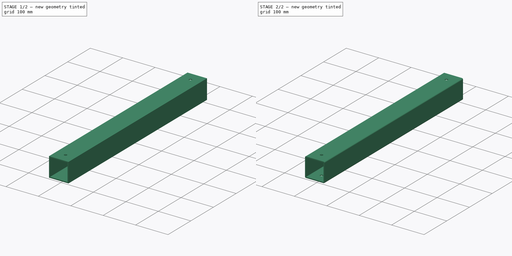
[diagram: build sequence overview — one tinted view per stage of 2, left to right]
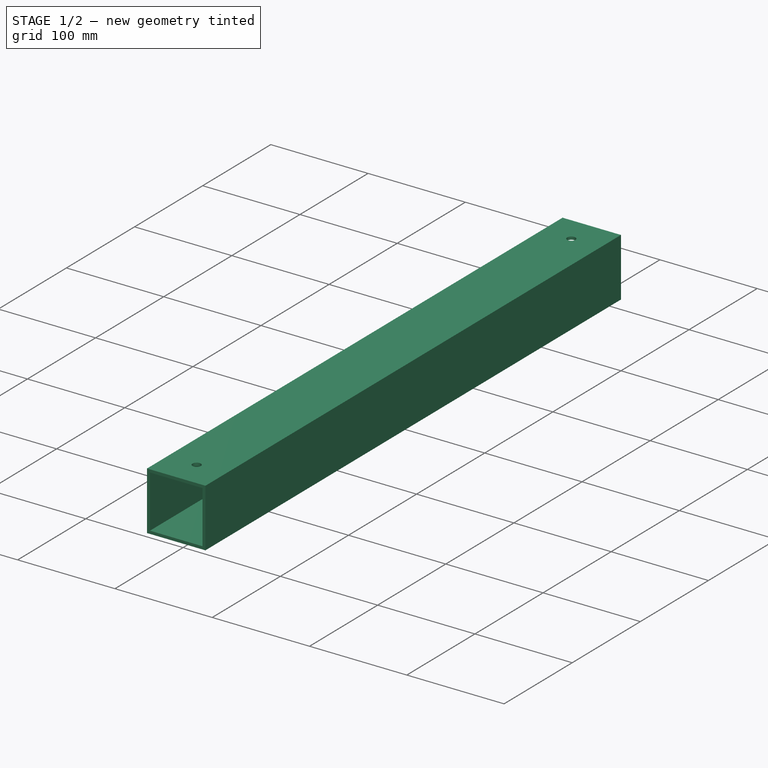
[diagram: stage 1 of 2 — iso view after this stage's code; geometry added in this stage tinted green]
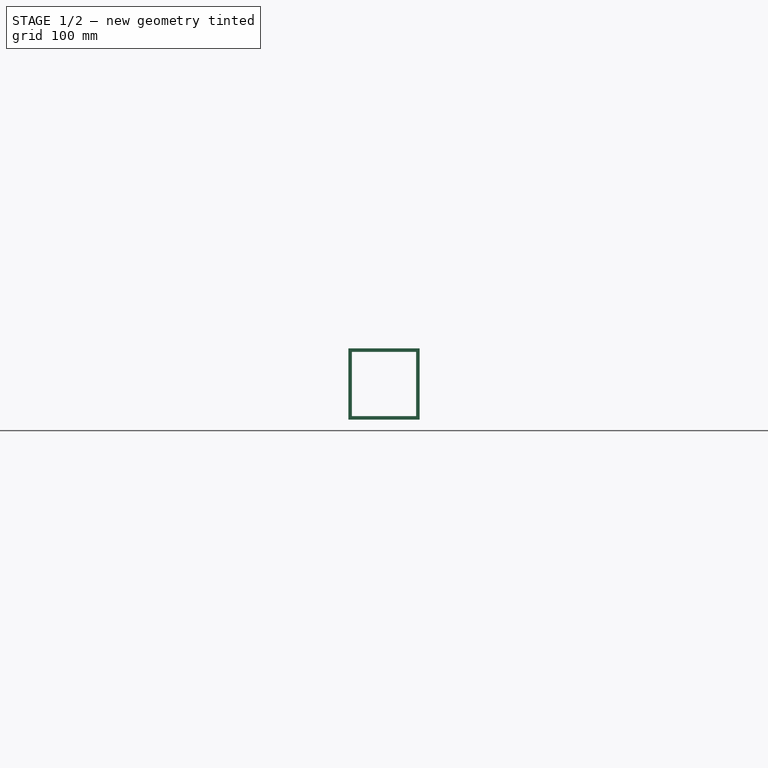
[diagram: stage 1 of 2 — front view after this stage's code; geometry added in this stage tinted green]
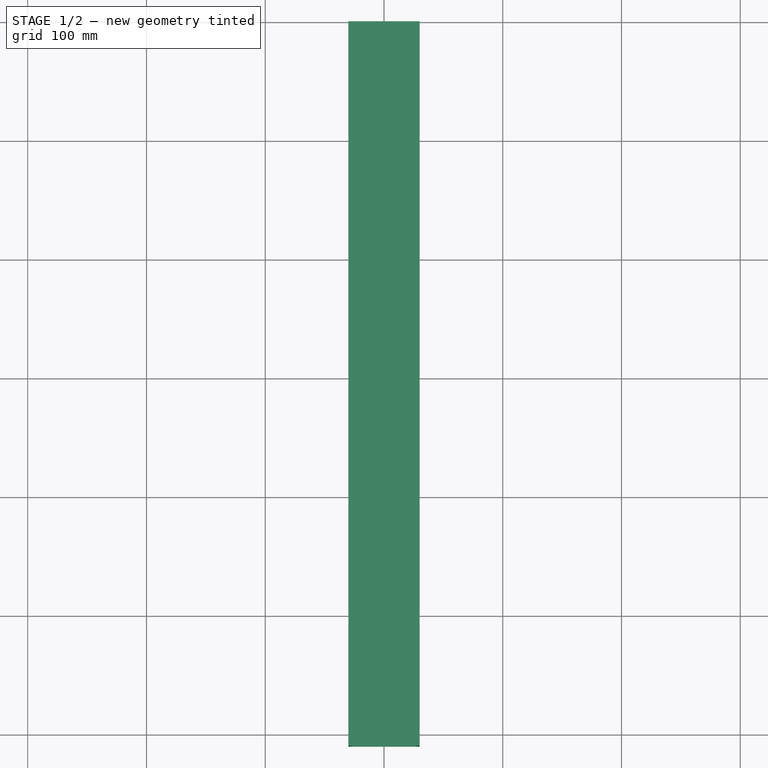
[diagram: stage 1 of 2 — top view after this stage's code; geometry added in this stage tinted green]
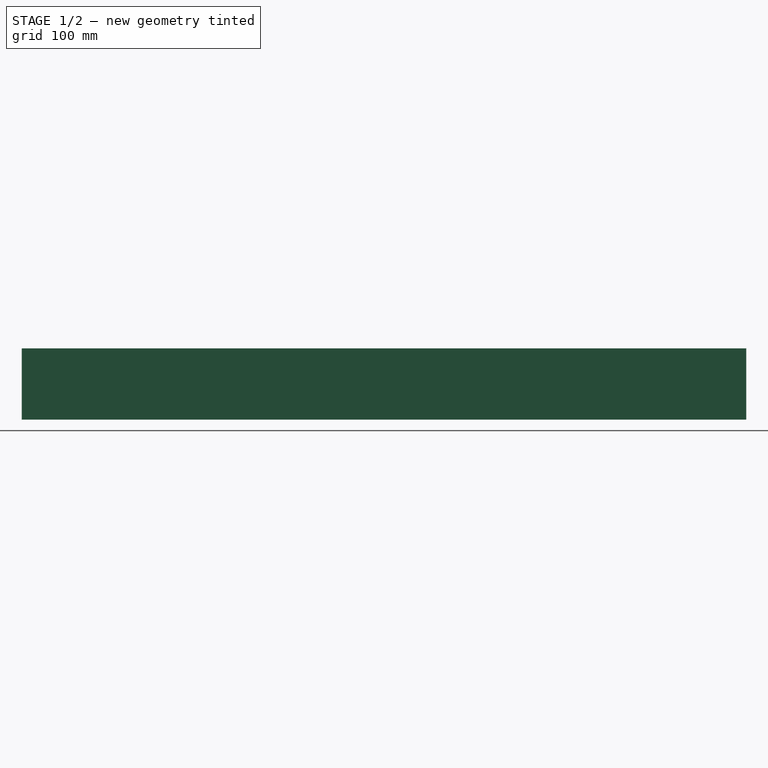
[diagram: stage 1 of 2 — right view after this stage's code; geometry added in this stage tinted green]
FCSTD DOCUMENT  (FreeCAD 0.19R)
Label: x_low_tube
License: All rights reserved
LicenseURL: http://en.wikipedia.org/wiki/All_rights_reserved
objects: PartDesign::CoordinateSystem×4, Sketcher::SketchObject×3, PartDesign::Pocket×2, PartDesign::Pad×1, PartDesign::Fillet×1, PartDesign::Body×1
note: 16 computed .brp shape members not serialized (recipe doc carries the construction recipe); baked Part::Feature solids carry a one-line shape summary decoded from their .brp

FEATURE [Sketcher::SketchObject] Sketch
  FullyConstrained = true
  MapMode = 5
  Placement = pos=(0,0,0) rot=(1,0,0;1.5708rad)
  Support = -> [XZ_Plane]
  sketch-geometry (8):
    g0: LineSegment StartX=-27 StartY=27 StartZ=0 EndX=27 EndY=27 EndZ=0
    g1: LineSegment StartX=27 StartY=27 StartZ=0 EndX=27 EndY=-27 EndZ=0
    g2: LineSegment StartX=27 StartY=-27 StartZ=0 EndX=-27 EndY=-27 EndZ=0
    g3: LineSegment StartX=-27 StartY=-27 StartZ=0 EndX=-27 EndY=27 EndZ=0
    g4: LineSegment StartX=-30 StartY=30 StartZ=0 EndX=30 EndY=30 EndZ=0
    g5: LineSegment StartX=30 StartY=30 StartZ=0 EndX=30 EndY=-30 EndZ=0
    g6: LineSegment StartX=30 StartY=-30 StartZ=0 EndX=-30 EndY=-30 EndZ=0
    g7: LineSegment StartX=-30 StartY=-30 StartZ=0 EndX=-30 EndY=30 EndZ=0
  constraints (22):
    c: Coincident(g0,g1)
    c: Coincident(g1,g2)
    c: Coincident(g2,g3)
    c: Coincident(g3,g0)
    c: Horizontal(g0)
    c: Horizontal(g2)
    c: Vertical(g1)
    c: Vertical(g3)
    c: Coincident(g4,g5)
    c: Coincident(g5,g6)
    c: Coincident(g6,g7)
    c: Coincident(g7,g4)
    c: Horizontal(g6)
    c: Vertical(g5)
    c: DistanceY(g7,g7) = 60
    c: DistanceX(g4,g4) = 60
    c: Symmetric(g4,g4,g-2)
    c: Symmetric(g6,g4,g-1)
    c: DistanceX(g0,g4) = 3
    c: DistanceY(g0,g4) = 3
    c: DistanceX(g6,g2) = 3
    c: DistanceY(g6,g2) = 3
FEATURE [PartDesign::Pad] Pad
  Direction = (1,1,1)
  Length = 610
  Length2 = 100
  Placement = pos=(0,0,0) rot=(1,0,0;1.5708rad)
  Profile = -> Sketch
  Type = 0
FEATURE [Sketcher::SketchObject] Sketch001
  ExternalGeometry = -> [Pad]
  FullyConstrained = true
  MapMode = 5
  Placement = pos=(0,0,30) rot=(0,0,1;3.14159rad)
  Support = -> [Pad]
  sketch-geometry (2):
    g0: Circle CenterX=0 CenterY=30 CenterZ=0 NormalX=0 NormalY=0 NormalZ=1 AngleXU=0 Radius=4.25
    g1: Circle CenterX=0 CenterY=580 CenterZ=0 NormalX=0 NormalY=0 NormalZ=1 AngleXU=0 Radius=4.25
  constraints (6):
    c: PointOnObject(g0,g-2)
    c: DistanceY(g-3,g0) = 30
    c: PointOnObject(g1,g-2)
    c: DistanceY(g1,g-4) = 30
    c: Equal(g1,g0)
    c: Diameter(g0) = 8.5
FEATURE [PartDesign::Pocket] Pocket
  BaseFeature = -> Pad
  Length = 3
  Length2 = 100
  Placement = pos=(0,0,0) rot=(1,0,0;1.5708rad)
  Profile = -> Sketch001
  Type = 0
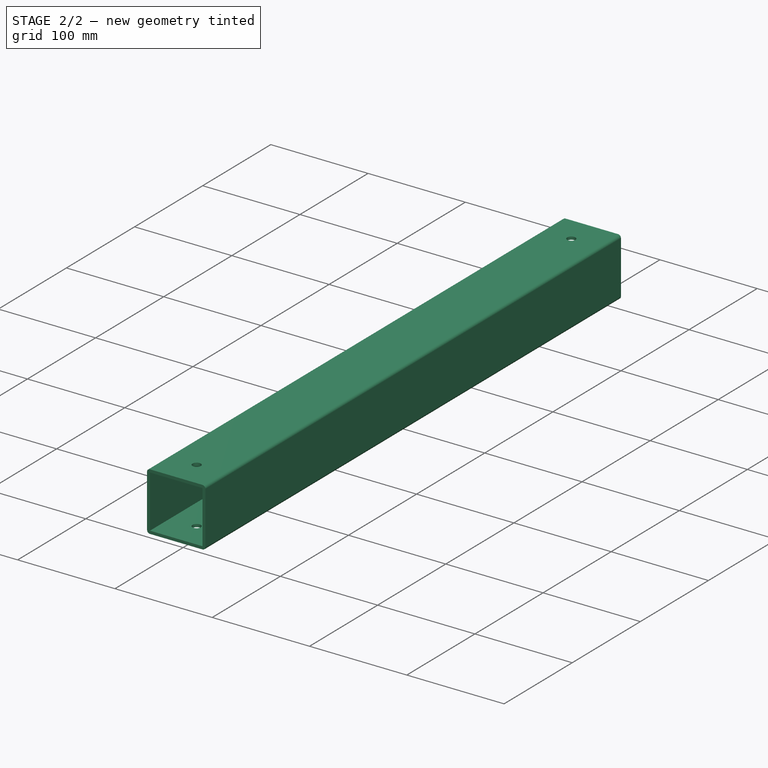
[diagram: stage 2 of 2 — iso view after this stage's code; geometry added in this stage tinted green]
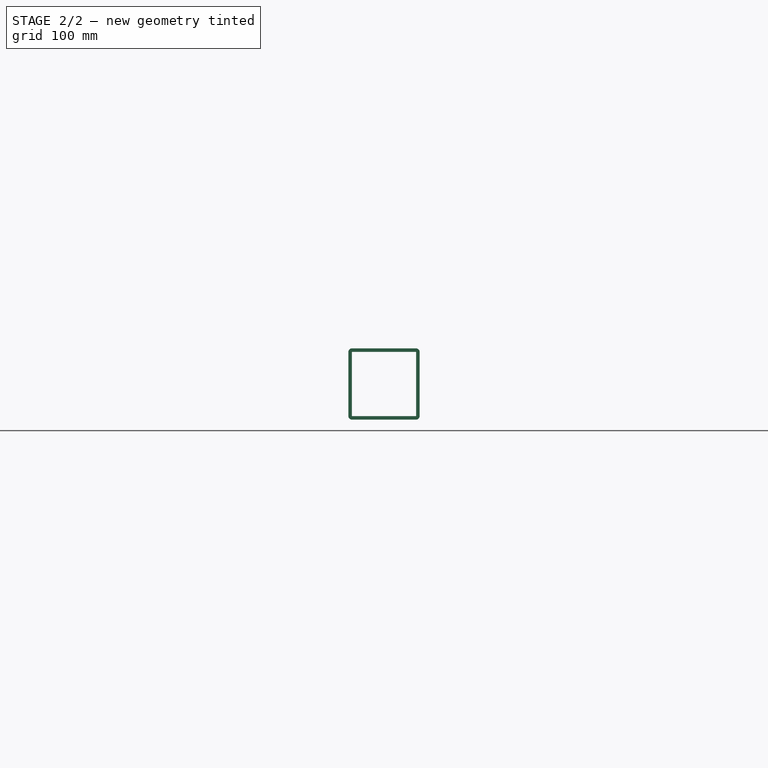
[diagram: stage 2 of 2 — front view after this stage's code; geometry added in this stage tinted green]
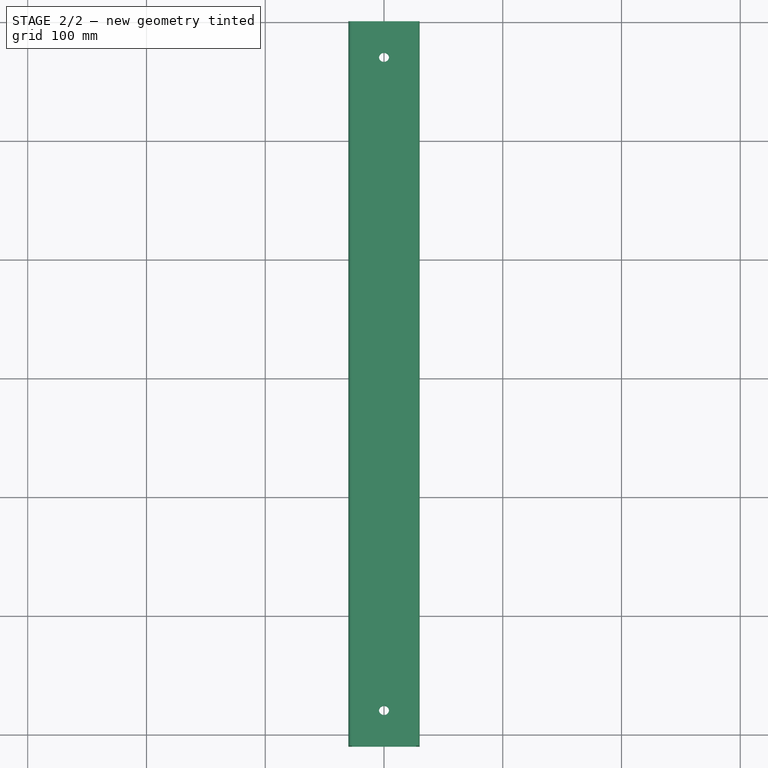
[diagram: stage 2 of 2 — top view after this stage's code; geometry added in this stage tinted green]
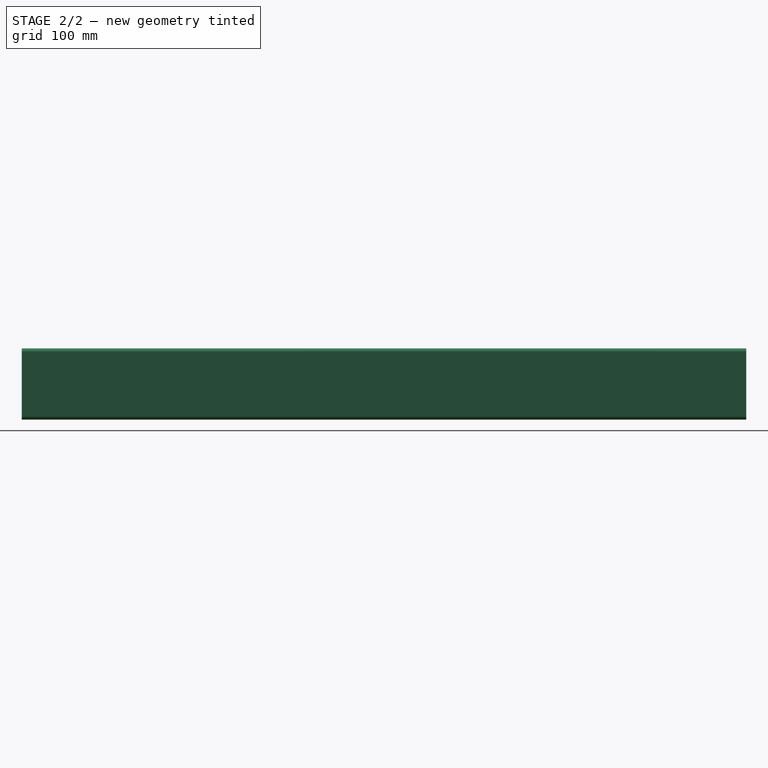
[diagram: stage 2 of 2 — right view after this stage's code; geometry added in this stage tinted green]
FEATURE [PartDesign::CoordinateSystem] LCS_hole1
  AttacherType = Attacher::AttachEngine3D
  MapMode = 11
  Placement = pos=(0,-580,30) rot=(0,0,-1;1.5708rad)
  Support = -> [Pocket]
FEATURE [PartDesign::CoordinateSystem] LCS_hole2
  AttacherType = Attacher::AttachEngine3D
  MapMode = 11
  Placement = pos=(0,-30,30) rot=(0,0,-1;1.5708rad)
  Support = -> [Pocket]
FEATURE [Sketcher::SketchObject] Sketch002
  ExternalGeometry = -> [Pocket]
  FullyConstrained = true
  MapMode = 5
  Placement = pos=(0,0,-30) rot=(1,0,0;3.14159rad)
  Support = -> [Pocket]
  sketch-geometry (2):
    g0: Circle CenterX=0 CenterY=30 CenterZ=0 NormalX=0 NormalY=0 NormalZ=1 AngleXU=0 Radius=4.25
    g1: Circle CenterX=0 CenterY=580 CenterZ=0 NormalX=0 NormalY=0 NormalZ=1 AngleXU=0 Radius=4.25
  constraints (6):
    c: PointOnObject(g0,g-2)
    c: PointOnObject(g1,g-2)
    c: Equal(g0,g1)
    c: Diameter(g1) = 8.5
    c: DistanceY(g-1,g0) = 30
    c: DistanceY(g1,g-3) = 30
FEATURE [PartDesign::Pocket] Pocket001
  BaseFeature = -> Pocket
  Length = 3
  Length2 = 100
  Placement = pos=(0,0,0) rot=(1,0,0;1.5708rad)
  Profile = -> Sketch002
  Type = 0
FEATURE [PartDesign::CoordinateSystem] LCS_hole3
  AttacherType = Attacher::AttachEngine3D
  MapMode = 11
  Placement = pos=(0,-30,-30) rot=(0.707107,-0.707107,0;3.14159rad)
  Support = -> [Pocket001]
FEATURE [PartDesign::CoordinateSystem] LCS_hole4
  AttacherType = Attacher::AttachEngine3D
  MapMode = 11
  Placement = pos=(0,-580,-30) rot=(0.707107,-0.707107,0;3.14159rad)
  Support = -> [Pocket001]
FEATURE [PartDesign::Fillet] Fillet
  Base = -> Pocket001 [Edge4,Edge22,Edge7,Edge1]
  BaseFeature = -> Pocket001
  Placement = pos=(0,0,0) rot=(1,0,0;1.5708rad)
  Radius = 3
  SupportTransform = false
FEATURE [PartDesign::Body] Body
  Group = -> [Sketch,Pad,Sketch001,Pocket,LCS_hole1,LCS_hole2,Sketch002,Pocket001,LCS_hole3,LCS_hole4,Fillet]
  Origin = -> Origin
  Tip = -> Fillet
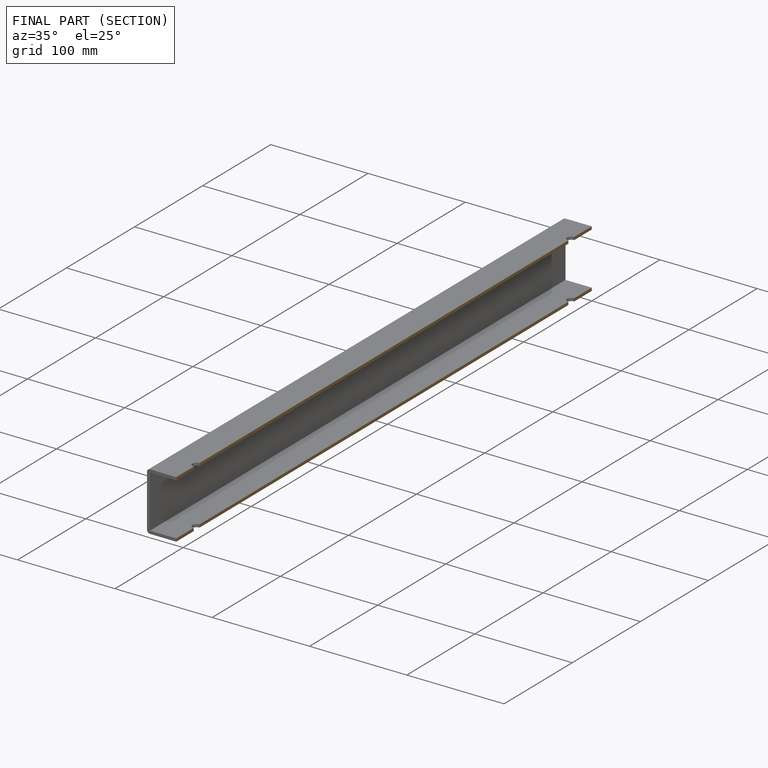
[diagram: finished part — half-section view (interior)]
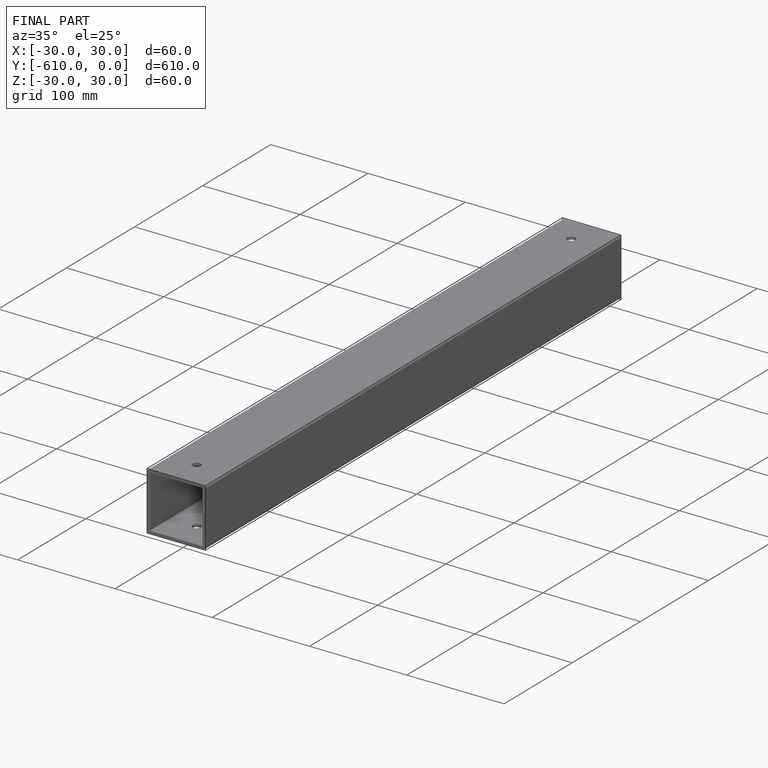
[diagram: finished part — iso view with bounding-box wireframe]
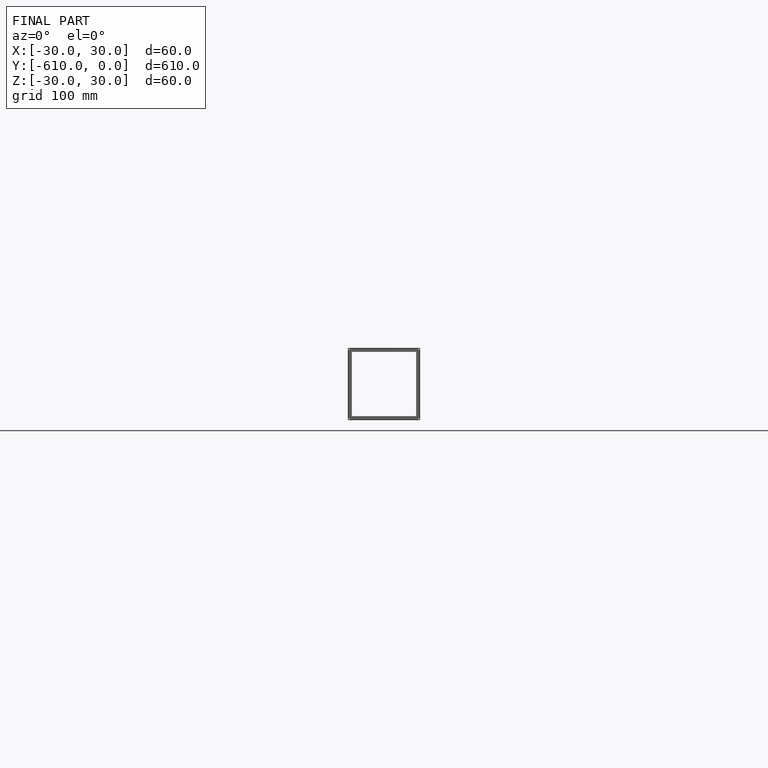
[diagram: finished part — front view with bounding-box wireframe]
